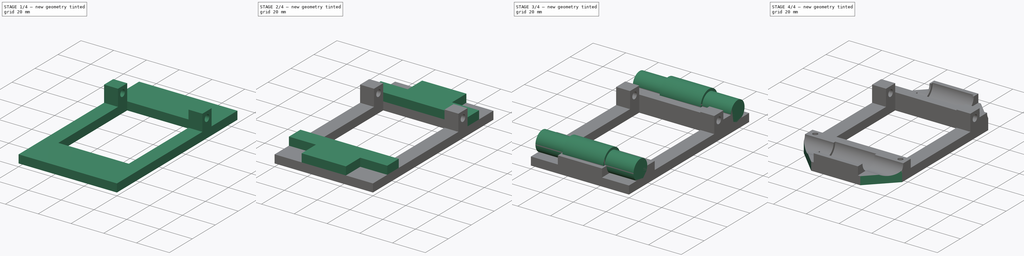
[diagram: build sequence overview — one tinted view per stage of 4, left to right]
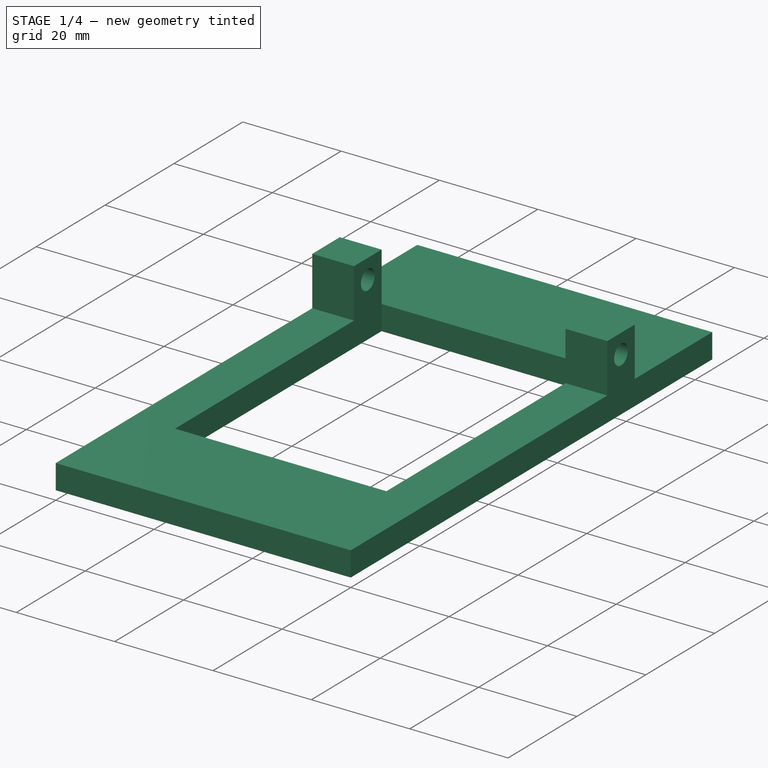
[diagram: stage 1 of 4 — iso view after this stage's code; geometry added in this stage tinted green]
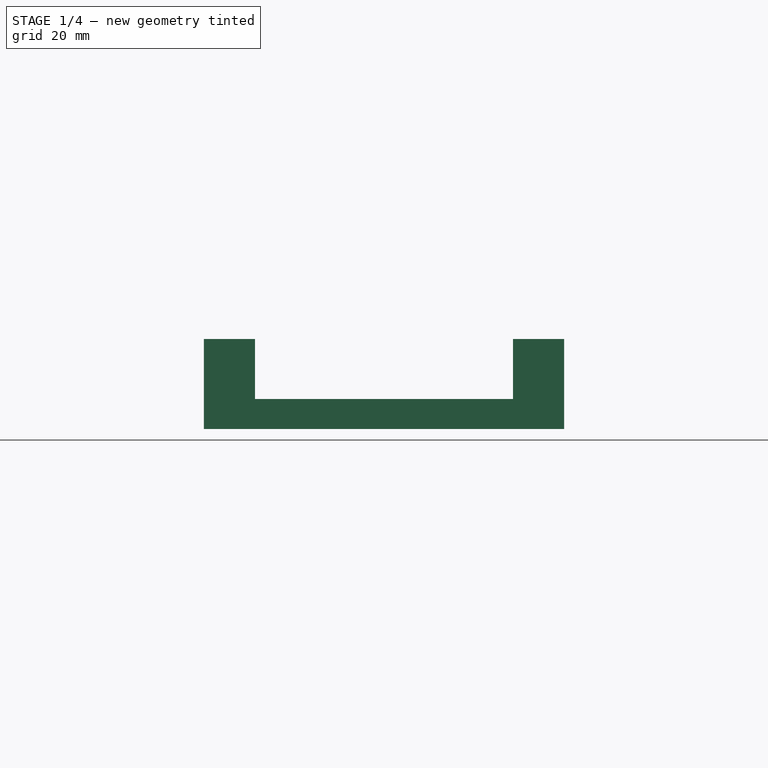
[diagram: stage 1 of 4 — front view after this stage's code; geometry added in this stage tinted green]
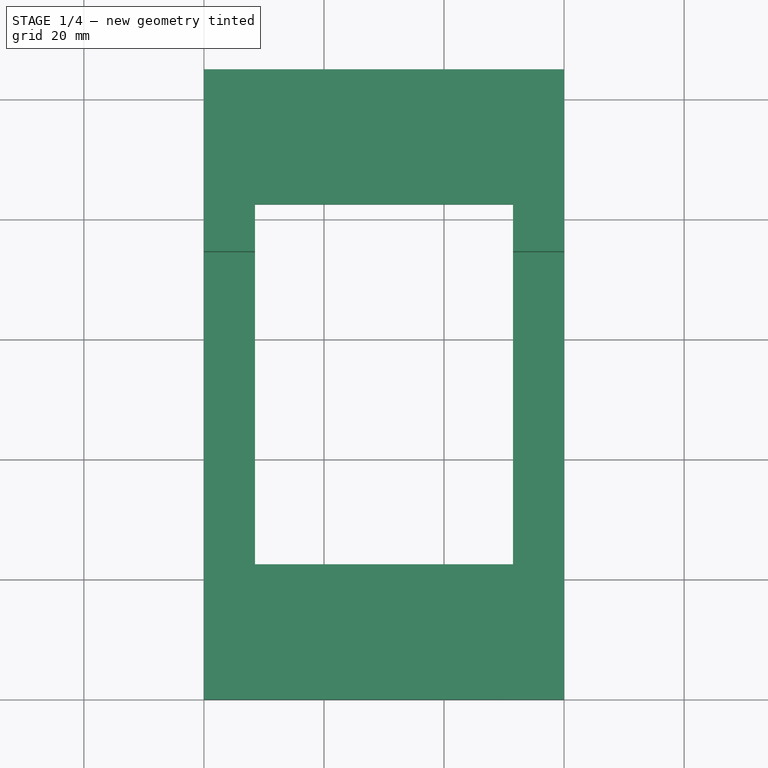
[diagram: stage 1 of 4 — top view after this stage's code; geometry added in this stage tinted green]
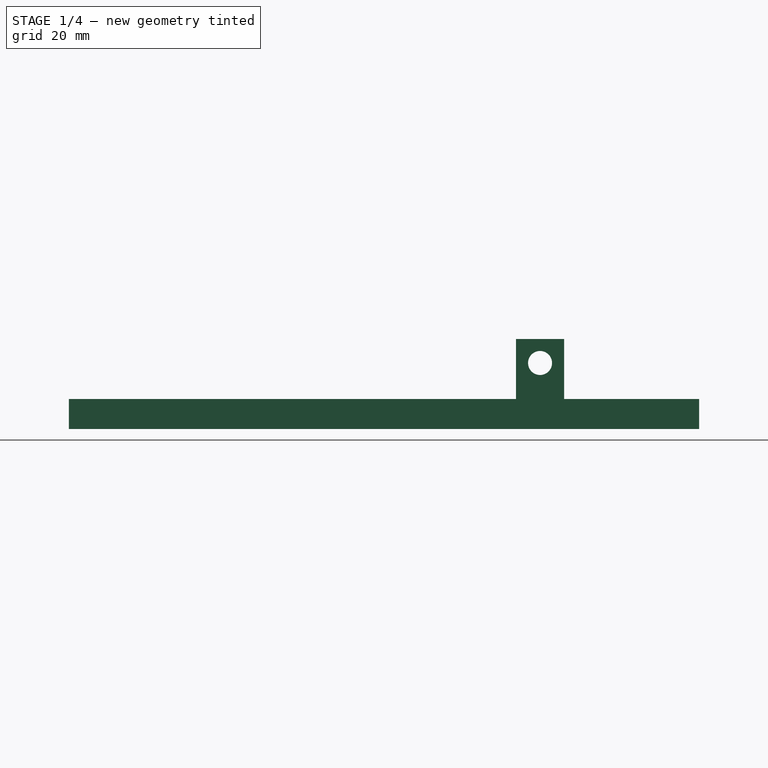
[diagram: stage 1 of 4 — right view after this stage's code; geometry added in this stage tinted green]
FCSTD DOCUMENT  (FreeCAD 0.16R6707 (Git))
Label: X-Carrage_Front
License: All rights reserved
LicenseURL: http://en.wikipedia.org/wiki/All_rights_reserved
objects: Sketcher::SketchObject×8, PartDesign::Pad×8, Part::MultiFuse×2, Part::Cut×1, PartDesign::Chamfer×1
note: 28 computed .brp shape members not serialized (recipe doc carries the construction recipe); baked Part::Feature solids carry a one-line shape summary decoded from their .brp

FEATURE [Sketcher::SketchObject] Sketch
  sketch-geometry (8):
    g0: LineSegment StartX=0 StartY=105 StartZ=0 EndX=60 EndY=105 EndZ=0
    g1: LineSegment StartX=60 StartY=105 StartZ=0 EndX=60 EndY=0 EndZ=0
    g2: LineSegment StartX=60 StartY=0 StartZ=0 EndX=0 EndY=0 EndZ=0
    g3: LineSegment StartX=0 StartY=0 StartZ=0 EndX=0 EndY=105 EndZ=0
    g4: LineSegment StartX=8.5 StartY=82.5 StartZ=0 EndX=51.5 EndY=82.5 EndZ=0
    g5: LineSegment StartX=51.5 StartY=82.5 StartZ=0 EndX=51.5 EndY=22.5 EndZ=0
    g6: LineSegment StartX=51.5 StartY=22.5 StartZ=0 EndX=8.5 EndY=22.5 EndZ=0
    g7: LineSegment StartX=8.5 StartY=22.5 StartZ=0 EndX=8.5 EndY=82.5 EndZ=0
  constraints (23):
    c: Coincident(g0,g1)
    c: Coincident(g1,g2)
    c: Coincident(g2,g3)
    c: Coincident(g3,g0)
    c: Horizontal(g0)
    c: Horizontal(g2)
    c: Vertical(g1)
    c: Vertical(g3)
    c: Coincident(g2,g-1)
    c: DistanceY(g3,g3) = 105
    c: DistanceX(g0,g0) = 60
    c: Coincident(g4,g5)
    c: Coincident(g5,g6)
    c: Coincident(g6,g7)
    c: Coincident(g7,g4)
    c: Horizontal(g4)
    c: Horizontal(g6)
    c: Vertical(g5)
    c: Vertical(g7)
    c: DistanceX(g6,g6) = 43
    c: DistanceX(g-1,g6) = 8.5
    c: DistanceY(g7,g7) = 60
    c: DistanceY(g-1,g6) = 22.5
FEATURE [PartDesign::Pad] Pad  label="Base"
  Length = 5
  Length2 = 100
  Sketch = -> Sketch
  Type = 0
FEATURE [Sketcher::SketchObject] Sketch004
  Placement = pos=(0,0,0) rot=(0.57735,0.57735,0.57735;2.0944rad)
  sketch-geometry (5):
    g0: LineSegment StartX=74.5 StartY=5 StartZ=0 EndX=74.5 EndY=15 EndZ=0
    g1: LineSegment StartX=74.5 StartY=15 StartZ=0 EndX=82.5 EndY=15 EndZ=0
    g2: LineSegment StartX=82.5 StartY=15 StartZ=0 EndX=82.5 EndY=5 EndZ=0
    g3: LineSegment StartX=82.5 StartY=5 StartZ=0 EndX=74.5 EndY=5 EndZ=0
    g4: Circle CenterX=78.5 CenterY=11 CenterZ=0 NormalX=0 NormalY=0 NormalZ=1 Radius=2
  constraints (15):
    c: Vertical(g0)
    c: Coincident(g0,g1)
    c: Coincident(g1,g2)
    c: Coincident(g3,g0)
    c: Coincident(g3,g2)
    c: Vertical(g2)
    c: Horizontal(g1)
    c: Horizontal(g3)
    c: DistanceX(g1,g1) = 8
    c: DistanceY(g-1,g0) = 5
    c: Radius(g4) = 2
    c: DistanceX(g0,g4) = 4
    c: DistanceY(g4,g0) = 4
    c: DistanceX(g-1,g2) = 82.5
    c: DistanceY(g0,g0) = 10
FEATURE [Sketcher::SketchObject] Sketch005
  Placement = pos=(60,0,0) rot=(0.57735,0.57735,0.57735;2.0944rad)
  sketch-geometry (5):
    g0: LineSegment StartX=74.5 StartY=5 StartZ=0 EndX=74.5 EndY=15 EndZ=0
    g1: LineSegment StartX=74.5 StartY=15 StartZ=0 EndX=82.5 EndY=15 EndZ=0
    g2: LineSegment StartX=82.5 StartY=15 StartZ=0 EndX=82.5 EndY=5 EndZ=0
    g3: LineSegment StartX=82.5 StartY=5 StartZ=0 EndX=74.5 EndY=5 EndZ=0
    g4: Circle CenterX=78.5 CenterY=11 CenterZ=0 NormalX=0 NormalY=0 NormalZ=1 Radius=2
  constraints (15):
    c: Vertical(g0)
    c: Coincident(g0,g1)
    c: Coincident(g1,g2)
    c: Coincident(g3,g0)
    c: Coincident(g3,g2)
    c: Vertical(g2)
    c: Horizontal(g1)
    c: Horizontal(g3)
    c: DistanceX(g1,g1) = 8
    c: DistanceY(g-1,g0) = 5
    c: Radius(g4) = 2
    c: DistanceX(g0,g4) = 4
    c: DistanceY(g4,g0) = 4
    c: DistanceX(g-1,g2) = 82.5
    c: DistanceY(g0,g0) = 10
FEATURE [PartDesign::Pad] Pad003  label="LLeverHinge"
  Length = 8.5
  Length2 = 100
  Placement = pos=(0,0,0) rot=(0.57735,0.57735,0.57735;2.0944rad)
  Sketch = -> Sketch004
  Type = 0
FEATURE [PartDesign::Pad] Pad004  label="RLeverHinge"
  Length = 8.5
  Length2 = 100
  Placement = pos=(60,0,0) rot=(0.57735,0.57735,0.57735;2.0944rad)
  Reversed = true
  Sketch = -> Sketch005
  Type = 0
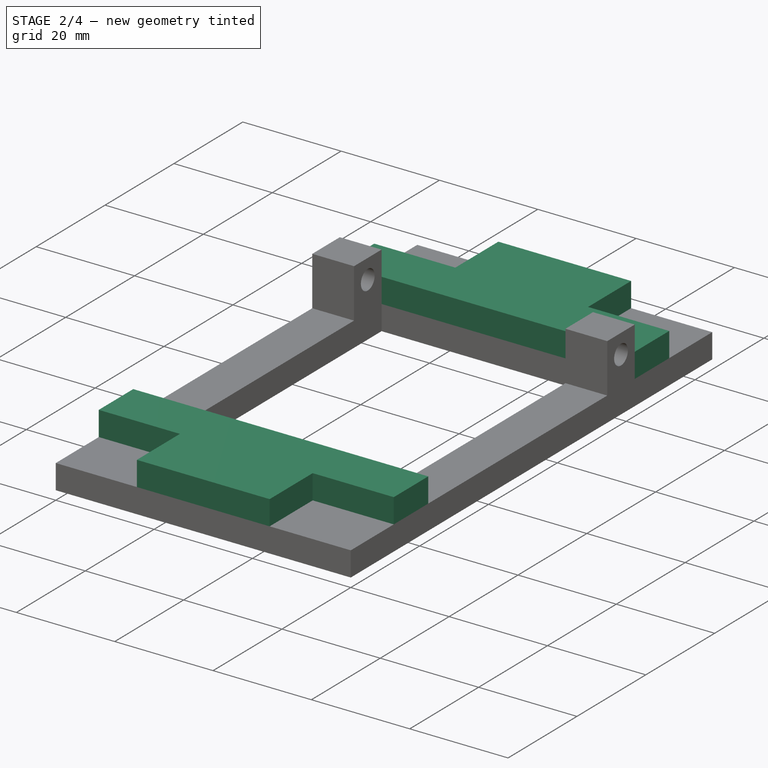
[diagram: stage 2 of 4 — iso view after this stage's code; geometry added in this stage tinted green]
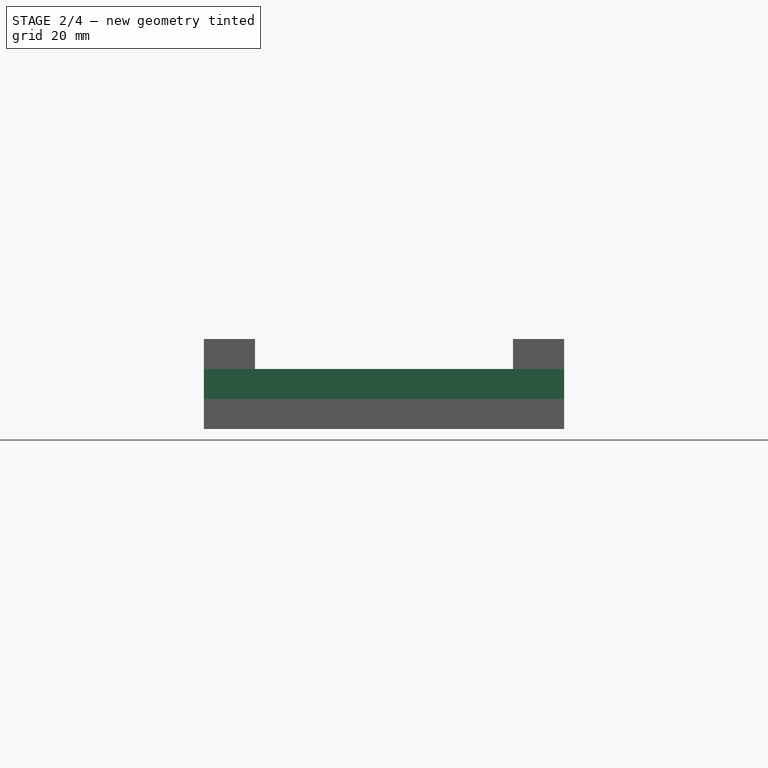
[diagram: stage 2 of 4 — front view after this stage's code; geometry added in this stage tinted green]
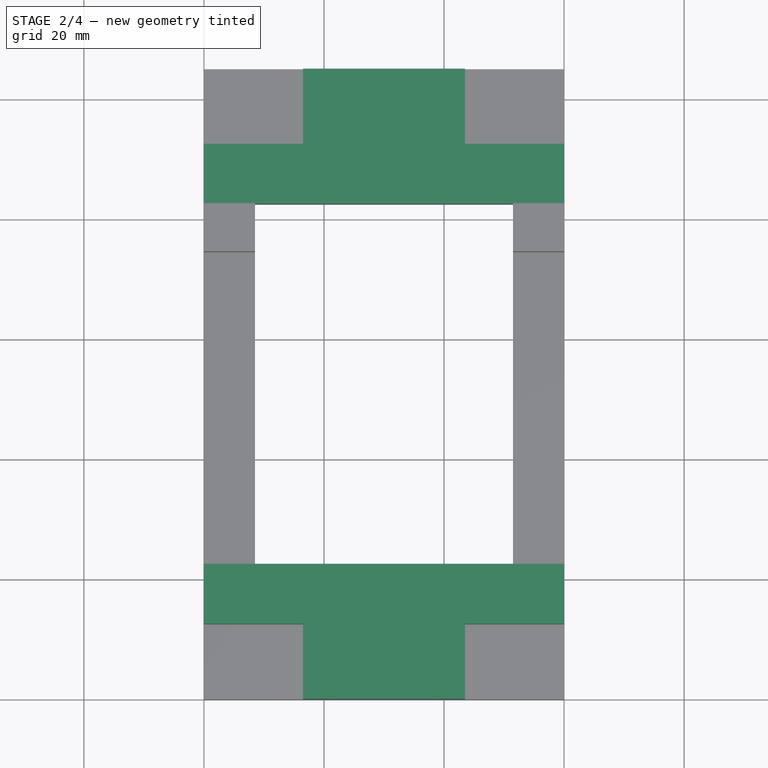
[diagram: stage 2 of 4 — top view after this stage's code; geometry added in this stage tinted green]
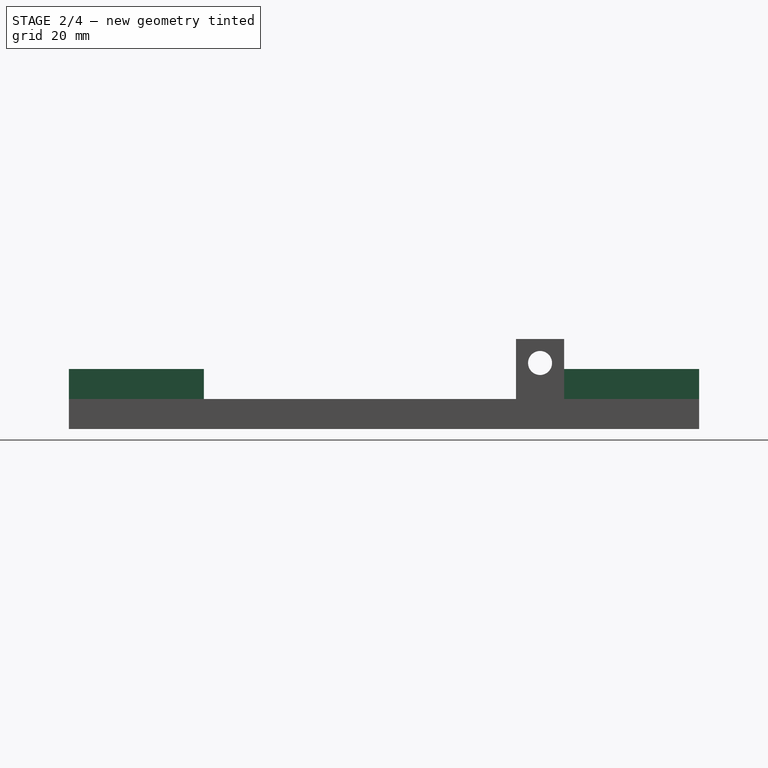
[diagram: stage 2 of 4 — right view after this stage's code; geometry added in this stage tinted green]
FEATURE [Sketcher::SketchObject] Sketch001
  Placement = pos=(0,0,5) rot=(0,0,1;0rad)
  Support = -> Pad [Face10]
  sketch-geometry (16):
    g0: LineSegment StartX=16.5 StartY=105 StartZ=0 EndX=43.5 EndY=105 EndZ=0
    g1: LineSegment StartX=60 StartY=82.5 StartZ=0 EndX=0 EndY=82.5 EndZ=0
    g2: LineSegment StartX=0 StartY=22.5 StartZ=0 EndX=60 EndY=22.5 EndZ=0
    g3: LineSegment StartX=43.5 StartY=0 StartZ=0 EndX=16.5 EndY=0 EndZ=0
    g4: LineSegment StartX=43.5 StartY=0 StartZ=0 EndX=43.5 EndY=12.5 EndZ=0
    g5: LineSegment StartX=43.5 StartY=12.5 StartZ=0 EndX=60 EndY=12.5 EndZ=0
    g6: LineSegment StartX=60 StartY=12.5 StartZ=0 EndX=60 EndY=22.5 EndZ=0
    g7: LineSegment StartX=16.5 StartY=0 StartZ=0 EndX=16.5 EndY=12.5 EndZ=0
    g8: LineSegment StartX=16.5 StartY=12.5 StartZ=0 EndX=0 EndY=12.5 EndZ=0
    g9: LineSegment StartX=0 StartY=12.5 StartZ=0 EndX=0 EndY=22.5 EndZ=0
    g10: LineSegment StartX=43.5 StartY=105 StartZ=0 EndX=43.5 EndY=92.5 EndZ=0
    g11: LineSegment StartX=43.5 StartY=92.5 StartZ=0 EndX=60 EndY=92.5 EndZ=0
    g12: LineSegment StartX=60 StartY=92.5 StartZ=0 EndX=60 EndY=82.5 EndZ=0
    g13: LineSegment StartX=16.5 StartY=105 StartZ=0 EndX=16.5 EndY=92.5 EndZ=0
    g14: LineSegment StartX=16.5 StartY=92.5 StartZ=0 EndX=0 EndY=92.5 EndZ=0
    g15: LineSegment StartX=0 StartY=92.5 StartZ=0 EndX=0 EndY=82.5 EndZ=0
  constraints (48):
    c: Horizontal(g0)
    c: Horizontal(g1)
    c: Horizontal(g2)
    c: Horizontal(g3)
    c: PointOnObject(g3,g-1)
    c: DistanceY(g-1,g0) = 105
    c: DistanceY(g1,g0) = 22.5
    c: DistanceX(g-1,g3) = 16.5
    c: Equal(g3,g0)
    c: DistanceX(g0,g0) = 27
    c: DistanceX(g0,g3) = 0
    c: Vertical(g4)
    c: Coincident(g4,g5)
    c: Coincident(g5,g6)
    c: Coincident(g7,g8)
    c: Coincident(g8,g9)
    c: Coincident(g10,g11)
    c: Coincident(g11,g12)
    c: Coincident(g13,g14)
    c: Horizontal(g14)
    c: Coincident(g14,g15)
    c: Vertical(g13)
    c: Vertical(g10)
    c: Horizontal(g11)
    c: Vertical(g12)
    c: Vertical(g6)
    c: Vertical(g9)
    c: Horizontal(g8)
    c: Horizontal(g5)
    c: Coincident(g6,g2)
    c: Coincident(g9,g2)
    c: DistanceY(g3,g2) = 22.5
    c: PointOnObject(g8,g-2)
    c: Coincident(g4,g3)
    c: DistanceX(g-1,g2) = 60
    c: Coincident(g7,g3)
    c: Vertical(g7)
    c: Coincident(g15,g1)
    c: Coincident(g13,g0)
    c: Coincident(g0,g10)
    c: Coincident(g12,g1)
    c: DistanceX(g1,g2) = 0
    c: PointOnObject(g1,g-2)
    c: Vertical(g15)
    c: Equal(g15,g12)
    c: Equal(g12,g6)
    c: Equal(g6,g9)
    c: DistanceY(g15,g15) = 10
FEATURE [PartDesign::Pad] Pad001  label="BearingBase"
  Length = 5
  Length2 = 100
  Sketch = -> Sketch001
  Type = 0
FEATURE [Sketcher::SketchObject] Sketch008
  sketch-geometry (4):
    g0: Circle CenterX=4 CenterY=85.75 CenterZ=0 NormalX=0 NormalY=0 NormalZ=1 Radius=3
    g1: Circle CenterX=56 CenterY=85.75 CenterZ=0 NormalX=0 NormalY=0 NormalZ=1 Radius=3
    g2: Circle CenterX=56 CenterY=19.25 CenterZ=0 NormalX=0 NormalY=0 NormalZ=1 Radius=3
    g3: Circle CenterX=4 CenterY=19.25 CenterZ=0 NormalX=0 NormalY=0 NormalZ=1 Radius=3
  constraints (12):
    c: DistanceY(g2,g3) = 0
    c: DistanceY(g1,g0) = 0
    c: DistanceX(g0,g3) = 0
    c: DistanceX(g2,g1) = 0
    c: DistanceX(g3,g2) = 52
    c: DistanceX(g-1,g3) = 4
    c: DistanceY(g3,g0) = 66.5
    c: DistanceY(g-1,g3) = 19.25
    c: Radius(g2) = 3
    c: Equal(g2,g3)
    c: Equal(g2,g0)
    c: Equal(g2,g1)
FEATURE [PartDesign::Pad] Pad007  label="MountPointsFlush"
  Length = 3
  Length2 = 100
  Sketch = -> Sketch008
  Type = 0
FEATURE [Part::MultiFuse] Fusion001  label="BaseBlocks"
  Shapes = -> [Pad001,Pad,Pad004,Pad003]
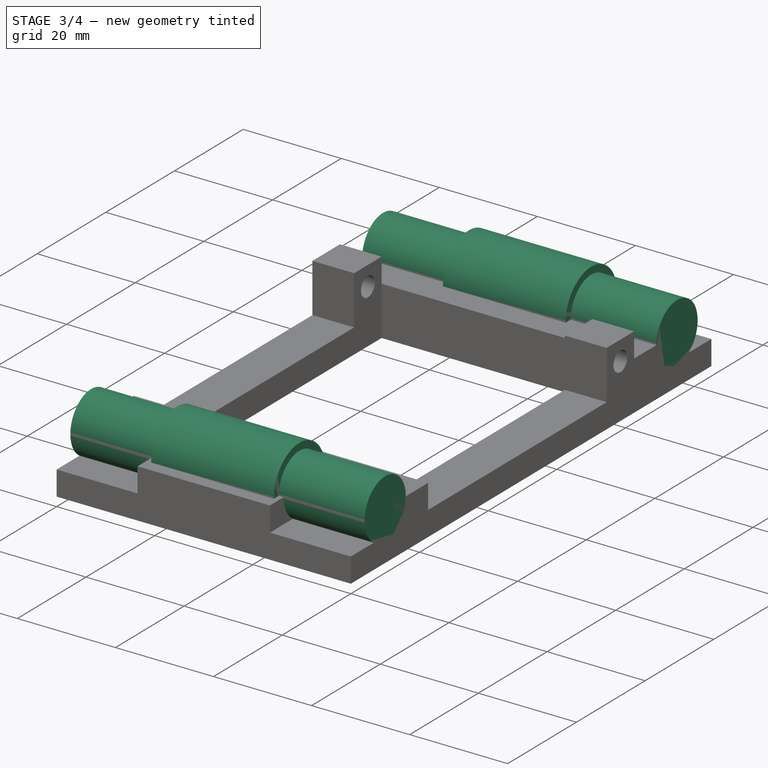
[diagram: stage 3 of 4 — iso view after this stage's code; geometry added in this stage tinted green]
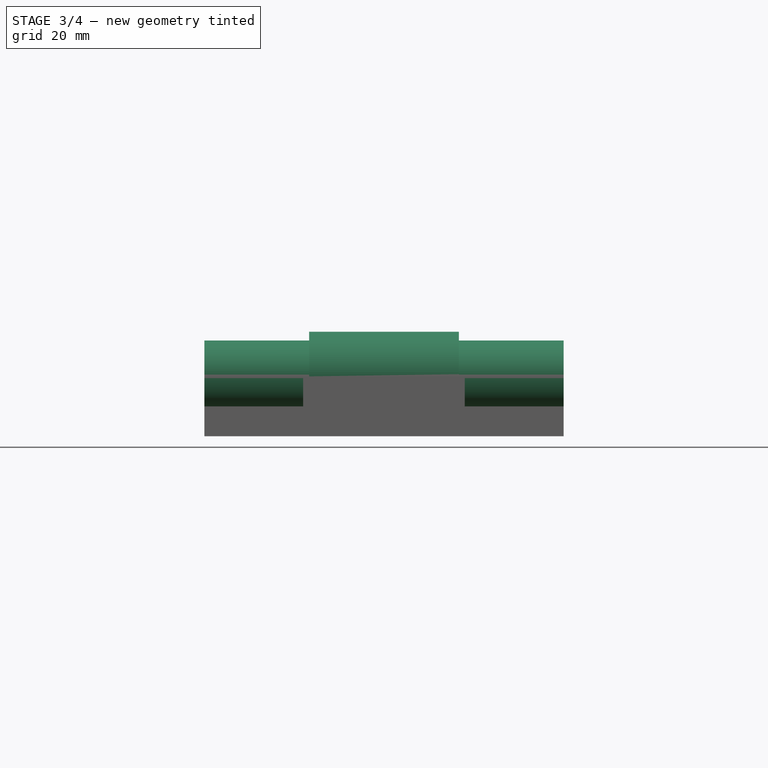
[diagram: stage 3 of 4 — front view after this stage's code; geometry added in this stage tinted green]
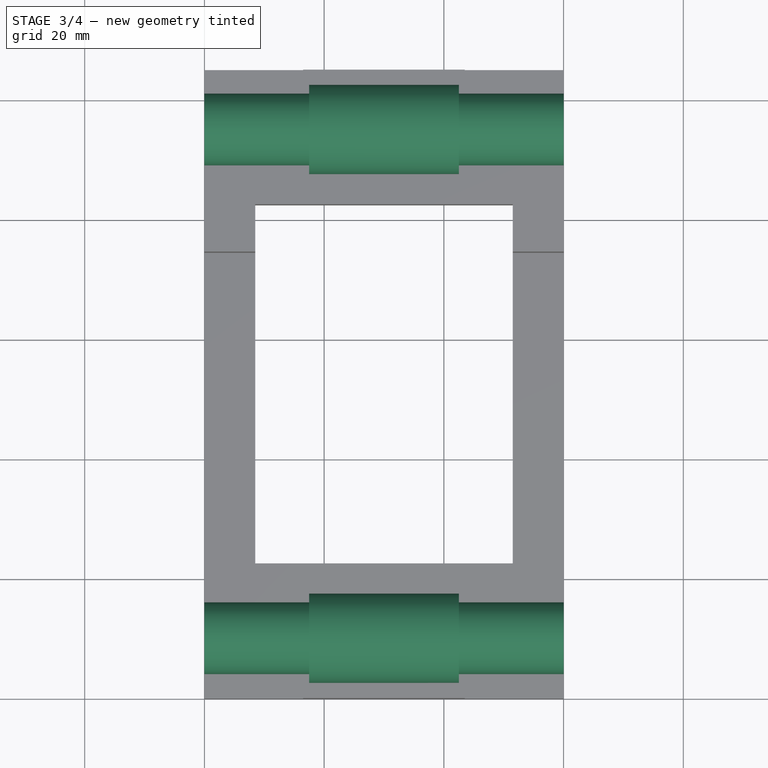
[diagram: stage 3 of 4 — top view after this stage's code; geometry added in this stage tinted green]
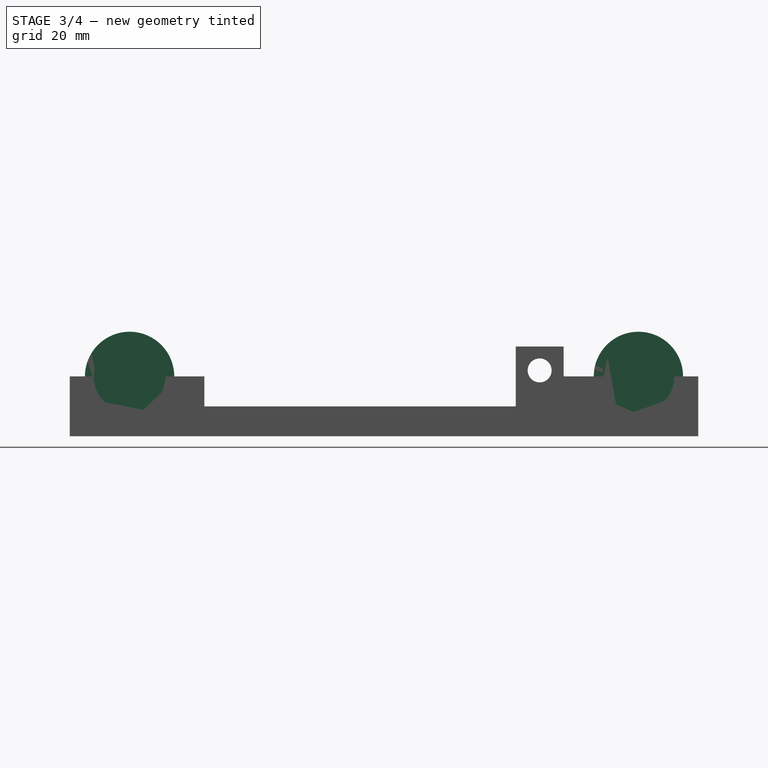
[diagram: stage 3 of 4 — right view after this stage's code; geometry added in this stage tinted green]
FEATURE [Sketcher::SketchObject] Sketch003
  Placement = pos=(17.5,0,0) rot=(0.57735,0.57735,0.57735;2.0944rad)
  sketch-geometry (2):
    g0: Circle CenterX=10 CenterY=10 CenterZ=0 NormalX=0 NormalY=0 NormalZ=1 Radius=7.46
    g1: Circle CenterX=95 CenterY=10 CenterZ=0 NormalX=0 NormalY=0 NormalZ=1 Radius=7.46
  constraints (6):
    c: DistanceX(g0,g1) = 85
    c: DistanceY(g1,g0) = 0
    c: DistanceY(g-1,g0) = 10
    c: DistanceX(g-1,g0) = 10
    c: Radius(g0) = 7.46
    c: Equal(g0,g1)
FEATURE [PartDesign::Pad] Pad002  label="BearingSlot"
  Length = 25
  Length2 = 100
  Placement = pos=(17.5,0,0) rot=(0.57735,0.57735,0.57735;2.0944rad)
  Sketch = -> Sketch003
  Type = 0
FEATURE [Sketcher::SketchObject] Sketch006
  Placement = pos=(0,0,0) rot=(0.57735,0.57735,0.57735;2.0944rad)
  sketch-geometry (2):
    g0: Circle CenterX=10 CenterY=10 CenterZ=0 NormalX=0 NormalY=0 NormalZ=1 Radius=6
    g1: Circle CenterX=95 CenterY=10 CenterZ=0 NormalX=0 NormalY=0 NormalZ=1 Radius=6
  constraints (6):
    c: DistanceY(g0,g1) = 0
    c: DistanceY(g-1,g0) = 10
    c: DistanceX(g0,g1) = 85
    c: DistanceX(g-1,g0) = 10
    c: Radius(g0) = 6
    c: Equal(g0,g1)
FEATURE [PartDesign::Pad] Pad005  label="RodSlot"
  Length = 60
  Length2 = 100
  Placement = pos=(0,0,0) rot=(0.57735,0.57735,0.57735;2.0944rad)
  Sketch = -> Sketch006
  Type = 0
FEATURE [Sketcher::SketchObject] Sketch007
  Placement = pos=(0,0,10) rot=(0,0,1;0rad)
  sketch-geometry (4):
    g0: Circle CenterX=4 CenterY=19.25 CenterZ=0 NormalX=0 NormalY=0 NormalZ=1 Radius=1.5
    g1: Circle CenterX=56 CenterY=19.25 CenterZ=0 NormalX=0 NormalY=0 NormalZ=1 Radius=1.5
    g2: Circle CenterX=56 CenterY=85.75 CenterZ=0 NormalX=0 NormalY=0 NormalZ=1 Radius=1.5
    g3: Circle CenterX=4 CenterY=85.75 CenterZ=0 NormalX=0 NormalY=0 NormalZ=1 Radius=1.5
  constraints (12):
    c: Radius(g3) = 1.5
    c: Equal(g3,g2)
    c: Equal(g3,g1)
    c: Equal(g3,g0)
    c: DistanceX(g1,g2) = 0
    c: DistanceX(g0,g3) = 0
    c: DistanceY(g3,g2) = 0
    c: DistanceY(g0,g1) = 0
    c: DistanceY(g0,g3) = 66.5
    c: DistanceY(g-1,g0) = 19.25
    c: DistanceX(g-1,g0) = 4
    c: DistanceX(g0,g1) = 52
FEATURE [PartDesign::Pad] Pad006  label="MountPoints"
  Length = 10
  Length2 = 100
  Placement = pos=(0,0,10) rot=(0,0,1;0rad)
  Reversed = true
  Sketch = -> Sketch007
  Type = 0
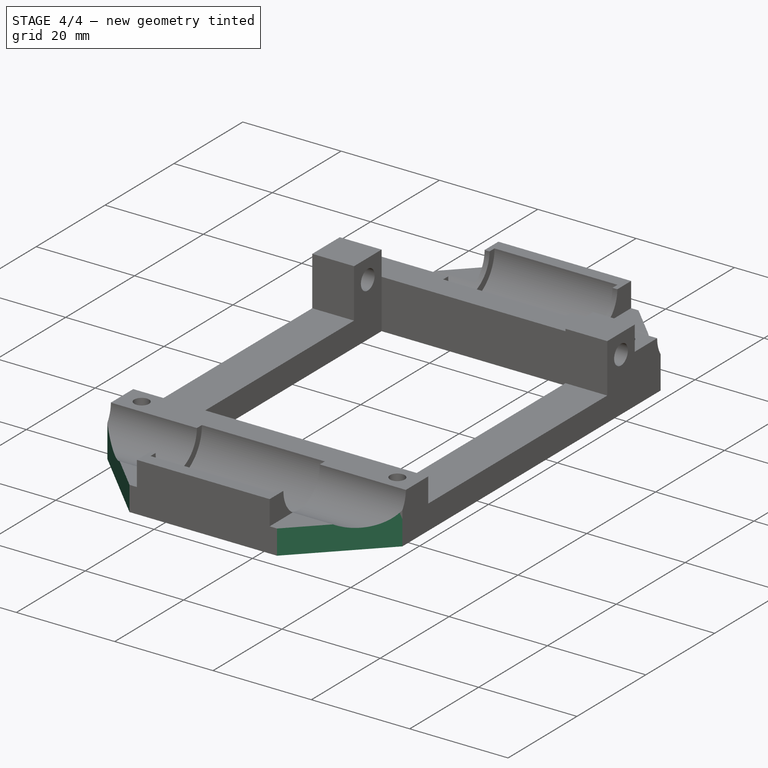
[diagram: stage 4 of 4 — iso view after this stage's code; geometry added in this stage tinted green]
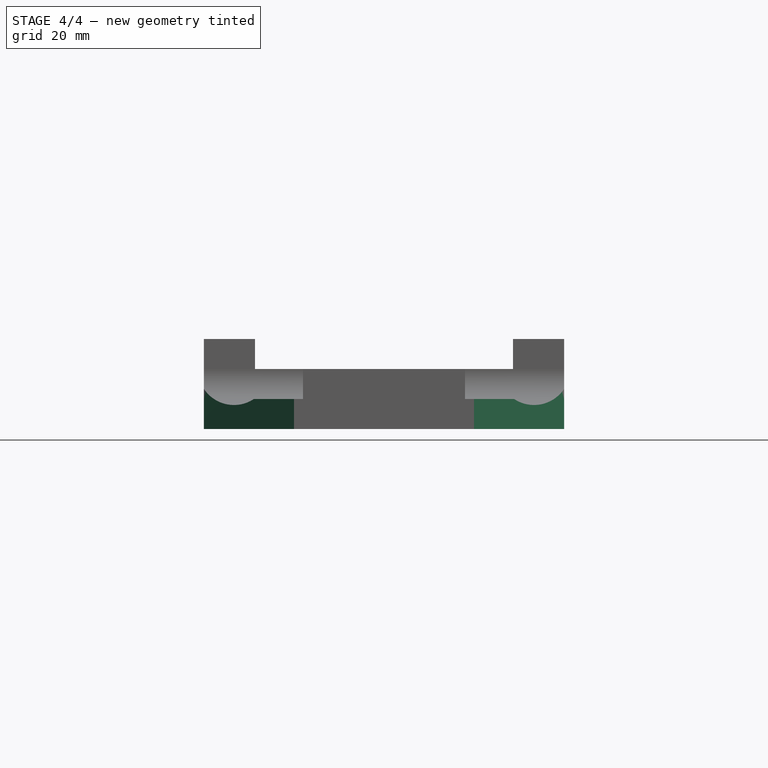
[diagram: stage 4 of 4 — front view after this stage's code; geometry added in this stage tinted green]
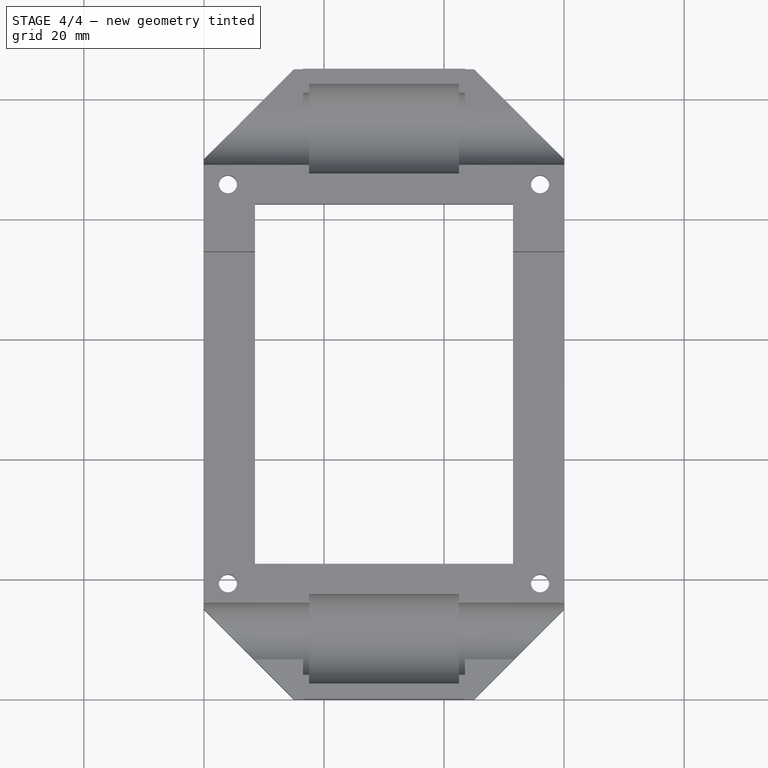
[diagram: stage 4 of 4 — top view after this stage's code; geometry added in this stage tinted green]
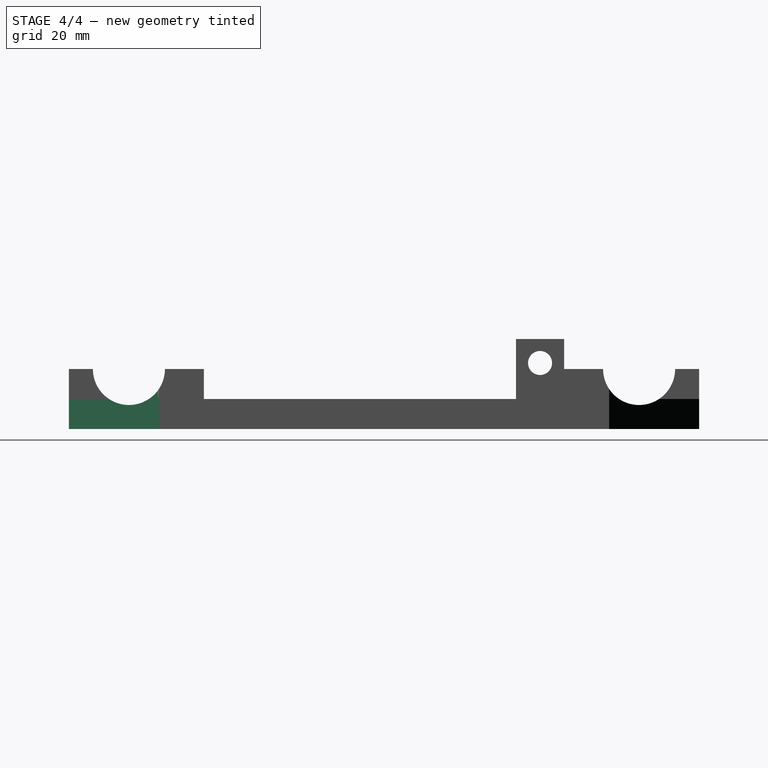
[diagram: stage 4 of 4 — right view after this stage's code; geometry added in this stage tinted green]
FEATURE [Part::MultiFuse] Fusion  label="CutBlocks"
  Shapes = -> [Pad007,Pad002,Pad005,Pad006]
FEATURE [Part::Cut] Cut
  Base = -> Fusion001
  Tool = -> Fusion
FEATURE [PartDesign::Chamfer] Chamfer
  Base = -> Cut [Edge32,Edge100,Edge87,Edge39]
  Size = 15
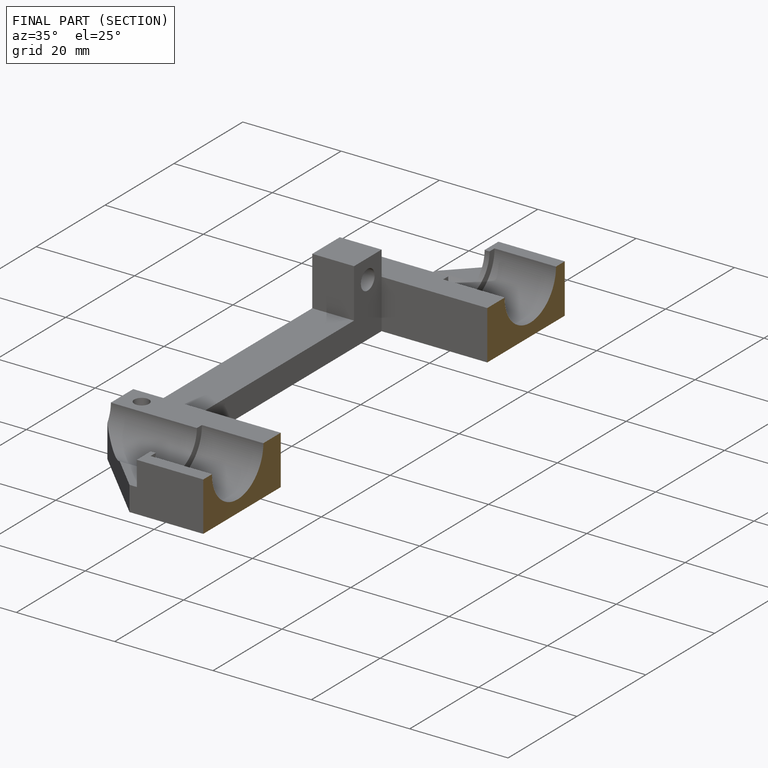
[diagram: finished part — half-section view (interior)]
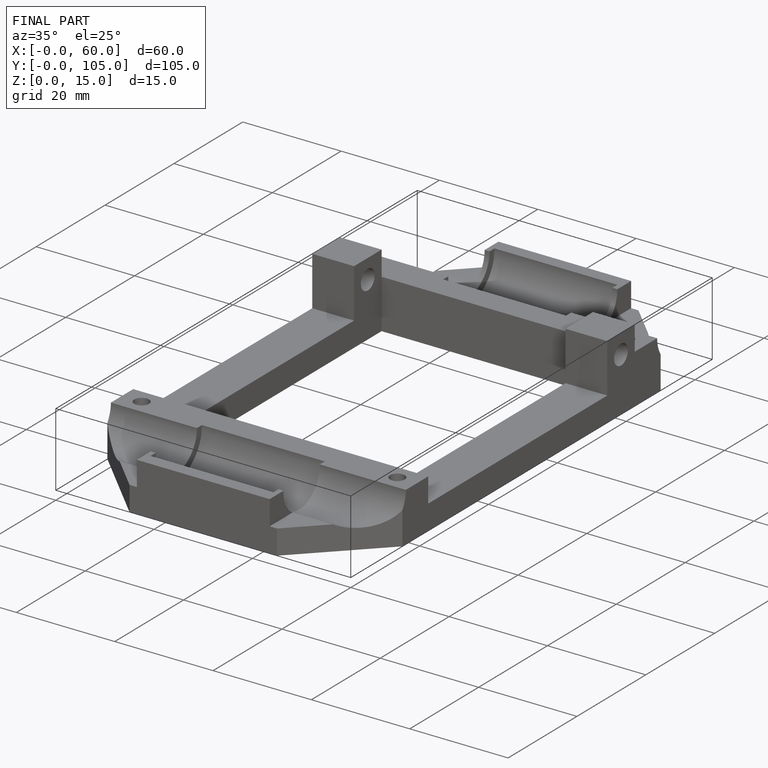
[diagram: finished part — iso view with bounding-box wireframe]
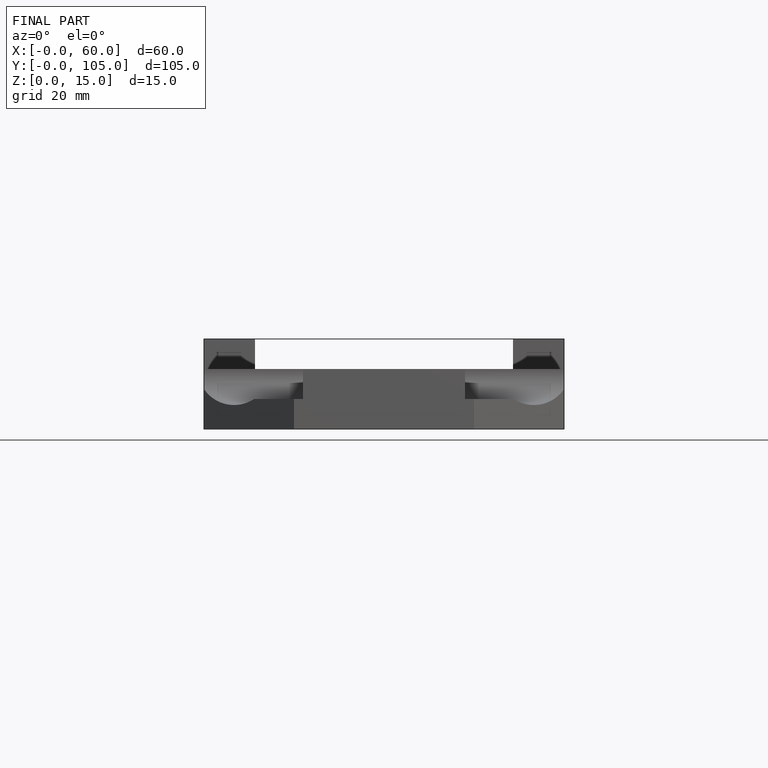
[diagram: finished part — front view with bounding-box wireframe]
